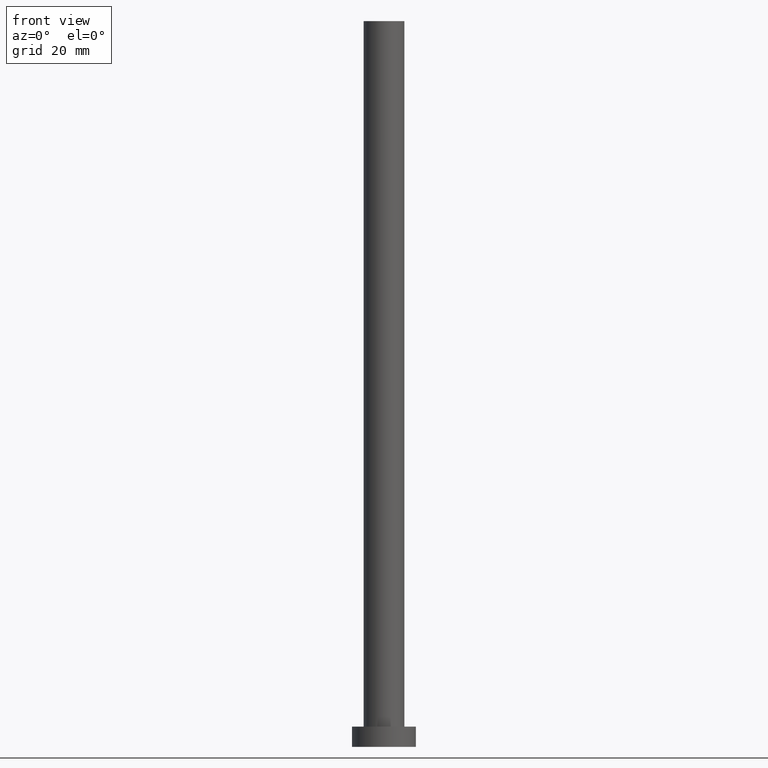
[diagram: clean part render]
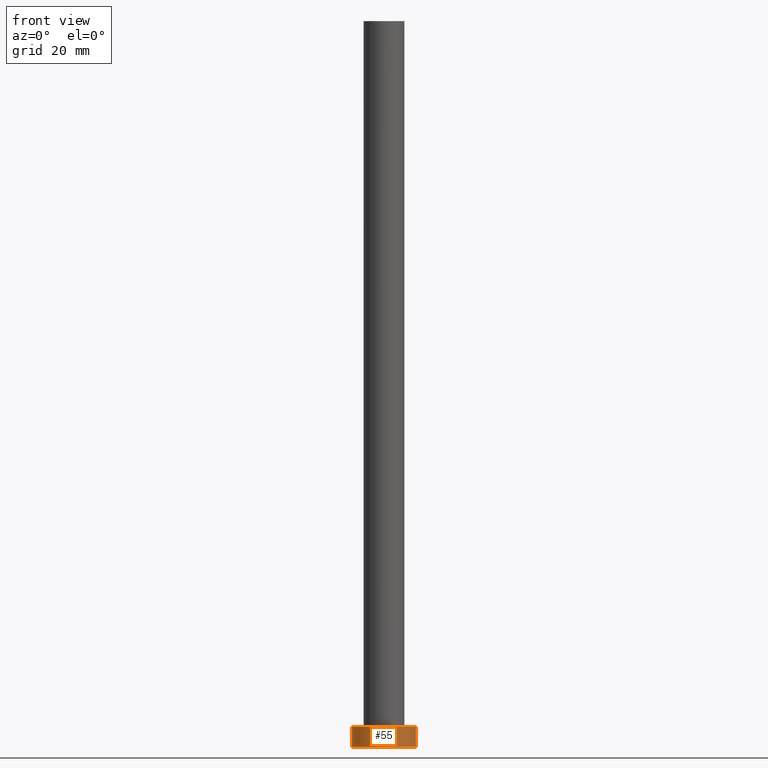
[diagram: same view with one face highlighted and labeled with its STEP entity id]
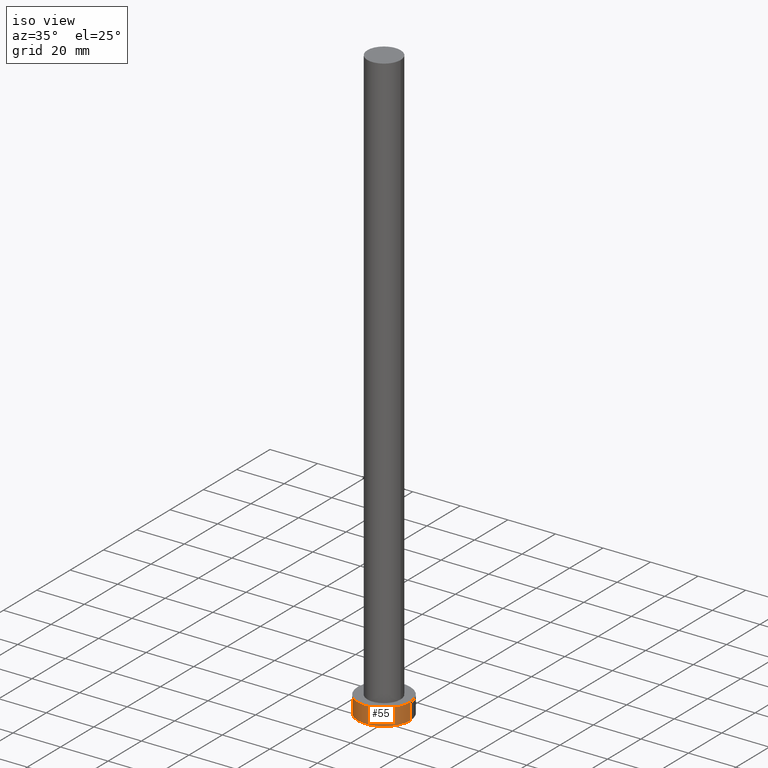
[diagram: same view with one face highlighted and labeled with its STEP entity id]
A machine part, front view. The second image highlights one B-rep face of the part: STEP entity #55.
A second angle (iso view) of the same face is appended — the face is thin or edge-on in the first view.
In plain terms, the highlighted cylindrical surface (edge-blend (fillet) strip) has radius 11 mm, axis along (-0, -0, -1).
Its self-contained STEP definition (entity closure, byte-faithful):
#1 = AXIS2_PLACEMENT_3D ( 'NONE', #216, #125, #65 ) ;
#7 = CARTESIAN_POINT ( 'NONE',  ( 0.000000000000000000, 0.000000000000000000, 0.000000000000000000 ) ) ;
#9 = CARTESIAN_POINT ( 'NONE',  ( -11.00000000000000000, 0.000000000000000000, 7.000000000000000000 ) ) ;
#10 = AXIS2_PLACEMENT_3D ( 'NONE', #7, #218, #123 ) ;
#16 = EDGE_CURVE ( 'NONE', #96, #172, #27, .T. ) ;
#27 = LINE ( 'NONE', #9, #247 ) ;
#33 = CARTESIAN_POINT ( 'NONE',  ( 11.00000000000000000, 1.347111479062088405E-15, 7.000000000000000000 ) ) ;
#46 = CARTESIAN_POINT ( 'NONE',  ( 11.00000000000000000, 1.347111479062088405E-15, 7.000000000000000000 ) ) ;
#48 = EDGE_CURVE ( 'NONE', #172, #212, #70, .T. ) ;
#52 = AXIS2_PLACEMENT_3D ( 'NONE', #86, #224, #228 ) ;
#55 = ADVANCED_FACE ( 'NONE', ( #196 ), #183, .T. ) ;
#65 = DIRECTION ( 'NONE',  ( -1.000000000000000000, 0.000000000000000000, 0.000000000000000000 ) ) ;
#67 = CARTESIAN_POINT ( 'NONE',  ( -11.00000000000000000, 0.000000000000000000, 7.000000000000000000 ) ) ;
#70 = CIRCLE ( 'NONE', #10, 11.00000000000000000 ) ;
#80 = VERTEX_POINT ( 'NONE', #46 ) ;
#85 = DIRECTION ( 'NONE',  ( -0.000000000000000000, -0.000000000000000000, -1.000000000000000000 ) ) ;
#86 = CARTESIAN_POINT ( 'NONE',  ( 0.000000000000000000, 0.000000000000000000, 7.000000000000000000 ) ) ;
#87 = DIRECTION ( 'NONE',  ( -0.000000000000000000, -0.000000000000000000, -1.000000000000000000 ) ) ;
#96 = VERTEX_POINT ( 'NONE', #67 ) ;
#101 = CIRCLE ( 'NONE', #52, 11.00000000000000000 ) ;
#110 = CARTESIAN_POINT ( 'NONE',  ( 11.00000000000000000, 1.347111479062088405E-15, 0.000000000000000000 ) ) ;
#118 = ORIENTED_EDGE ( 'NONE', *, *, #186, .F. ) ;
#123 = DIRECTION ( 'NONE',  ( 1.000000000000000000, 0.000000000000000000, 0.000000000000000000 ) ) ;
#125 = DIRECTION ( 'NONE',  ( -0.000000000000000000, -0.000000000000000000, -1.000000000000000000 ) ) ;
#132 = LINE ( 'NONE', #33, #162 ) ;
#134 = ORIENTED_EDGE ( 'NONE', *, *, #48, .T. ) ;
#145 = CARTESIAN_POINT ( 'NONE',  ( -11.00000000000000000, 0.000000000000000000, 0.000000000000000000 ) ) ;
#162 = VECTOR ( 'NONE', #87, 1000.000000000000000 ) ;
#172 = VERTEX_POINT ( 'NONE', #145 ) ;
#183 = CYLINDRICAL_SURFACE ( 'NONE', #1, 11.00000000000000000 ) ;
#186 = EDGE_CURVE ( 'NONE', #96, #80, #101, .T. ) ;
#195 = ORIENTED_EDGE ( 'NONE', *, *, #222, .F. ) ;
#196 = FACE_OUTER_BOUND ( 'NONE', #198, .T. ) ;
#198 = EDGE_LOOP ( 'NONE', ( #195, #118, #235, #134 ) ) ;
#212 = VERTEX_POINT ( 'NONE', #110 ) ;
#216 = CARTESIAN_POINT ( 'NONE',  ( 0.000000000000000000, 0.000000000000000000, 7.000000000000000000 ) ) ;
#218 = DIRECTION ( 'NONE',  ( 0.000000000000000000, 0.000000000000000000, 1.000000000000000000 ) ) ;
#222 = EDGE_CURVE ( 'NONE', #80, #212, #132, .T. ) ;
#224 = DIRECTION ( 'NONE',  ( 0.000000000000000000, 0.000000000000000000, 1.000000000000000000 ) ) ;
#228 = DIRECTION ( 'NONE',  ( 1.000000000000000000, 0.000000000000000000, 0.000000000000000000 ) ) ;
#235 = ORIENTED_EDGE ( 'NONE', *, *, #16, .T. ) ;
#247 = VECTOR ( 'NONE', #85, 1000.000000000000000 ) ;